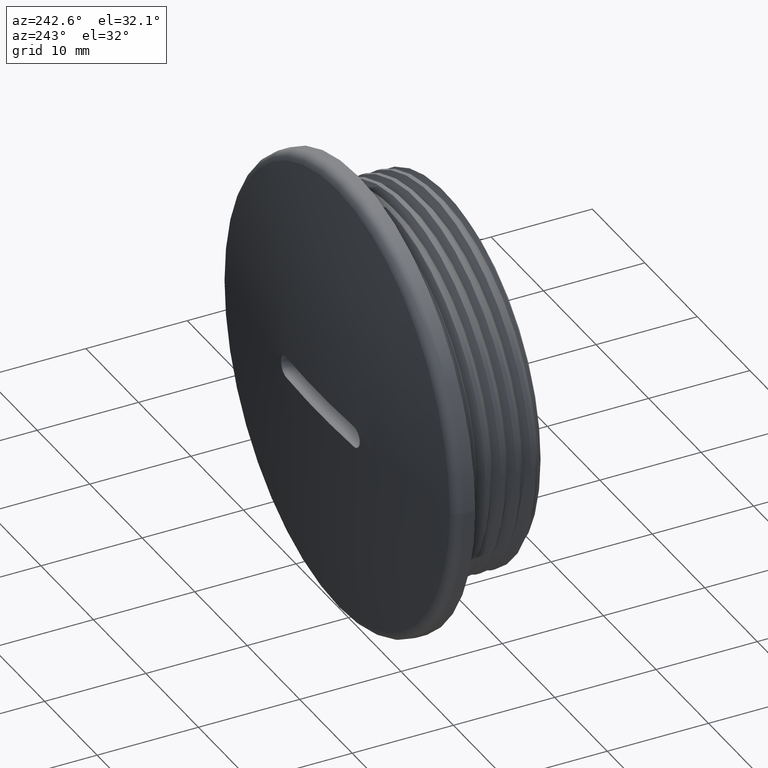
[diagram: clean part render]
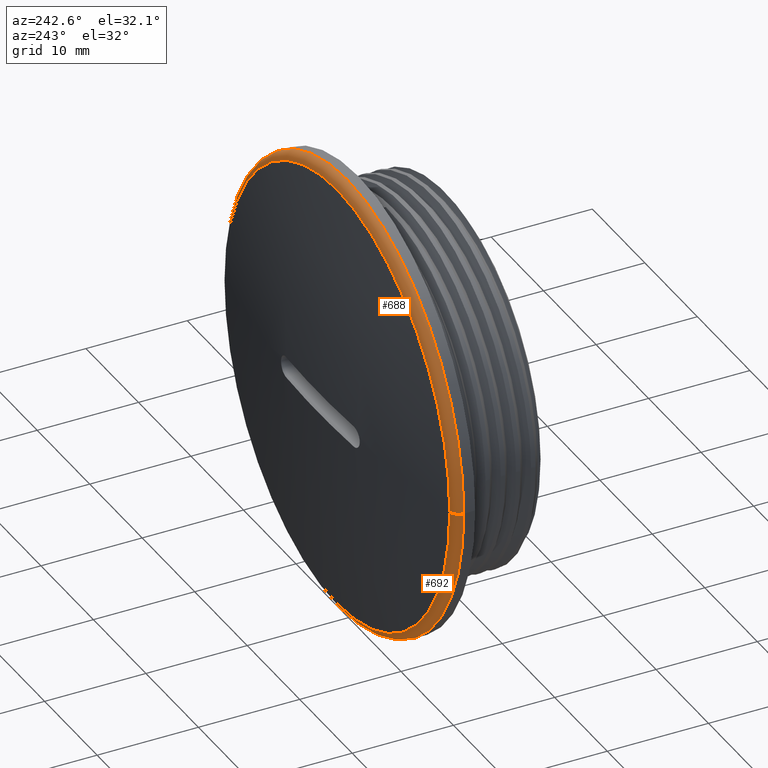
[diagram: same view with one multi-face feature highlighted, each face labeled with its STEP entity id]
A machine part, auxiliary view. The highlighted faces form ONE feature: a constant-radius fillet chain: 2 tangent blend faces with common blend radius 1 mm. The faces share edges in the B-rep.
Their STEP definitions:
[1] entity #688 (Torus):
#55 = ORIENTED_EDGE ( 'NONE', *, *, #587, .F. ) ;
#69 = ORIENTED_EDGE ( 'NONE', *, *, #652, .T. ) ;
#95 = ORIENTED_EDGE ( 'NONE', *, *, #583, .F. ) ;
#105 = ORIENTED_EDGE ( 'NONE', *, *, #582, .T. ) ;
#260 = VERTEX_POINT ( 'NONE', #359 ) ;
#266 = VERTEX_POINT ( 'NONE', #331 ) ;
#269 = EDGE_LOOP ( 'NONE', ( #95, #105, #69, #55 ) ) ;
#291 = VERTEX_POINT ( 'NONE', #320 ) ;
#320 = CARTESIAN_POINT ( 'NONE',  ( 21.40830658571909200, 11.10041557365281900, 1.359357947053561000E-015 ) ) ;
#331 = CARTESIAN_POINT ( 'NONE',  ( 22.20000000000046100, 10.12235199374323900, 1.290373062739448000E-029 ) ) ;
#359 = CARTESIAN_POINT ( 'NONE',  ( -21.40830658571803700, 11.10041557365485900, 4.029596600875390700E-015 ) ) ;
#374 = VERTEX_POINT ( 'NONE', #387 ) ;
#387 = CARTESIAN_POINT ( 'NONE',  ( -22.19999999999949800, 10.12235199374535500, 2.718715894107165300E-015 ) ) ;
#442 = DIRECTION ( 'NONE',  ( 1.224646799147353200E-016, -5.837380030986799400E-030, 1.000000000000000000 ) ) ;
#453 = DIRECTION ( 'NONE',  ( 1.000000000000000000, 0.0000000000000000000, -1.224646799147353500E-016 ) ) ;
#462 = CARTESIAN_POINT ( 'NONE',  ( 5.288733339959157600E-013, 11.10041557365383900, 1.359357947053561000E-015 ) ) ;
#463 = CARTESIAN_POINT ( 'NONE',  ( -21.20000000000000600, 10.12235199374531000, 3.955609161246009500E-015 ) ) ;
#464 = DIRECTION ( 'NONE',  ( 4.766582524080421000E-014, 1.000000000000000000, -0.0000000000000000000 ) ) ;
#466 = DIRECTION ( 'NONE',  ( 1.000000000000000000, -4.764587053115233100E-014, 0.0000000000000000000 ) ) ;
#490 = DIRECTION ( 'NONE',  ( 0.0000000000000000000, -0.0000000000000000000, -1.000000000000000000 ) ) ;
#495 = CARTESIAN_POINT ( 'NONE',  ( 21.20000000000097300, 10.12235199374328700, 1.359357947053561000E-015 ) ) ;
#539 = DIRECTION ( 'NONE',  ( -1.000000000000000000, 0.0000000000000000000, 0.0000000000000000000 ) ) ;
#582 = EDGE_CURVE ( 'NONE', #260, #374, #765, .T. ) ;
#583 = EDGE_CURVE ( 'NONE', #260, #291, #751, .T. ) ;
#587 = EDGE_CURVE ( 'NONE', #291, #266, #754, .T. ) ;
#652 = EDGE_CURVE ( 'NONE', #374, #266, #825, .T. ) ;
#688 = ADVANCED_FACE ( 'NONE', ( #1769 ), #843, .T. ) ;
#751 = CIRCLE ( 'NONE', #752, 21.40830658571856700 ) ;
#752 = AXIS2_PLACEMENT_3D ( 'NONE', #462, #464, #466 ) ;
#754 = CIRCLE ( 'NONE', #756, 0.9999999999994944000 ) ;
#756 = AXIS2_PLACEMENT_3D ( 'NONE', #495, #490, #539 ) ;
#765 = CIRCLE ( 'NONE', #767, 0.9999999999994944000 ) ;
#767 = AXIS2_PLACEMENT_3D ( 'NONE', #463, #442, #453 ) ;
#825 = CIRCLE ( 'NONE', #837, 22.19999999999998200 ) ;
#837 = AXIS2_PLACEMENT_3D ( 'NONE', #1069, #1070, #1071 ) ;
#843 = TOROIDAL_SURFACE ( 'NONE', #861, 21.20000000000049000, 0.9999999999994935200 ) ;
#861 = AXIS2_PLACEMENT_3D ( 'NONE', #1831, #1812, #1822 ) ;
#1069 = CARTESIAN_POINT ( 'NONE',  ( 4.822531263215523700E-013, 10.12235199374429800, 1.359357947053561000E-015 ) ) ;
#1070 = DIRECTION ( 'NONE',  ( 4.766582524080421000E-014, 1.000000000000000000, -0.0000000000000000000 ) ) ;
#1071 = DIRECTION ( 'NONE',  ( -1.000000000000000000, 4.766582524080419700E-014, 0.0000000000000000000 ) ) ;
#1769 = FACE_OUTER_BOUND ( 'NONE', #269, .T. ) ;
#1812 = DIRECTION ( 'NONE',  ( -4.766582524080421000E-014, -1.000000000000000000, 0.0000000000000000000 ) ) ;
#1822 = DIRECTION ( 'NONE',  ( 1.000000000000000000, -4.766582524080421000E-014, 0.0000000000000000000 ) ) ;
#1831 = CARTESIAN_POINT ( 'NONE',  ( 4.822531263215523700E-013, 10.12235199374429900, 1.359357947053561000E-015 ) ) ;
[2] entity #692 (Torus):
#186 = ORIENTED_EDGE ( 'NONE', *, *, #582, .F. ) ;
#203 = ORIENTED_EDGE ( 'NONE', *, *, #587, .T. ) ;
#207 = ORIENTED_EDGE ( 'NONE', *, *, #651, .T. ) ;
#232 = ORIENTED_EDGE ( 'NONE', *, *, #666, .F. ) ;
#260 = VERTEX_POINT ( 'NONE', #359 ) ;
#266 = VERTEX_POINT ( 'NONE', #331 ) ;
#268 = EDGE_LOOP ( 'NONE', ( #186, #232, #203, #207 ) ) ;
#291 = VERTEX_POINT ( 'NONE', #320 ) ;
#320 = CARTESIAN_POINT ( 'NONE',  ( 21.40830658571909200, 11.10041557365281900, 1.359357947053561000E-015 ) ) ;
#331 = CARTESIAN_POINT ( 'NONE',  ( 22.20000000000046100, 10.12235199374323900, 1.290373062739448000E-029 ) ) ;
#359 = CARTESIAN_POINT ( 'NONE',  ( -21.40830658571803700, 11.10041557365485900, 4.029596600875390700E-015 ) ) ;
#374 = VERTEX_POINT ( 'NONE', #387 ) ;
#387 = CARTESIAN_POINT ( 'NONE',  ( -22.19999999999949800, 10.12235199374535500, 2.718715894107165300E-015 ) ) ;
#442 = DIRECTION ( 'NONE',  ( 1.224646799147353200E-016, -5.837380030986799400E-030, 1.000000000000000000 ) ) ;
#453 = DIRECTION ( 'NONE',  ( 1.000000000000000000, 0.0000000000000000000, -1.224646799147353500E-016 ) ) ;
#463 = CARTESIAN_POINT ( 'NONE',  ( -21.20000000000000600, 10.12235199374531000, 3.955609161246009500E-015 ) ) ;
#490 = DIRECTION ( 'NONE',  ( 0.0000000000000000000, -0.0000000000000000000, -1.000000000000000000 ) ) ;
#495 = CARTESIAN_POINT ( 'NONE',  ( 21.20000000000097300, 10.12235199374328700, 1.359357947053561000E-015 ) ) ;
#539 = DIRECTION ( 'NONE',  ( -1.000000000000000000, 0.0000000000000000000, 0.0000000000000000000 ) ) ;
#582 = EDGE_CURVE ( 'NONE', #260, #374, #765, .T. ) ;
#587 = EDGE_CURVE ( 'NONE', #291, #266, #754, .T. ) ;
#651 = EDGE_CURVE ( 'NONE', #266, #374, #851, .T. ) ;
#666 = EDGE_CURVE ( 'NONE', #291, #260, #870, .T. ) ;
#692 = ADVANCED_FACE ( 'NONE', ( #1827 ), #821, .T. ) ;
#754 = CIRCLE ( 'NONE', #756, 0.9999999999994944000 ) ;
#756 = AXIS2_PLACEMENT_3D ( 'NONE', #495, #490, #539 ) ;
#765 = CIRCLE ( 'NONE', #767, 0.9999999999994944000 ) ;
#767 = AXIS2_PLACEMENT_3D ( 'NONE', #463, #442, #453 ) ;
#821 = TOROIDAL_SURFACE ( 'NONE', #849, 21.20000000000049000, 0.9999999999994935200 ) ;
#823 = AXIS2_PLACEMENT_3D ( 'NONE', #1060, #1064, #1061 ) ;
#849 = AXIS2_PLACEMENT_3D ( 'NONE', #1845, #1832, #1821 ) ;
#851 = CIRCLE ( 'NONE', #823, 22.19999999999998200 ) ;
#869 = AXIS2_PLACEMENT_3D ( 'NONE', #1157, #1184, #1162 ) ;
#870 = CIRCLE ( 'NONE', #869, 21.40830658571856700 ) ;
#1060 = CARTESIAN_POINT ( 'NONE',  ( 4.822531263215523700E-013, 10.12235199374429800, 1.359357947053561000E-015 ) ) ;
#1061 = DIRECTION ( 'NONE',  ( -1.000000000000000000, 4.766582524080419700E-014, 0.0000000000000000000 ) ) ;
#1064 = DIRECTION ( 'NONE',  ( 4.766582524080421000E-014, 1.000000000000000000, -0.0000000000000000000 ) ) ;
#1157 = CARTESIAN_POINT ( 'NONE',  ( 5.288733339959157600E-013, 11.10041557365383900, 1.359357947053561000E-015 ) ) ;
#1162 = DIRECTION ( 'NONE',  ( 1.000000000000000000, -4.764587053115233100E-014, 0.0000000000000000000 ) ) ;
#1184 = DIRECTION ( 'NONE',  ( 4.766582524080421000E-014, 1.000000000000000000, -0.0000000000000000000 ) ) ;
#1821 = DIRECTION ( 'NONE',  ( 1.000000000000000000, -4.766582524080421000E-014, 0.0000000000000000000 ) ) ;
#1827 = FACE_OUTER_BOUND ( 'NONE', #268, .T. ) ;
#1832 = DIRECTION ( 'NONE',  ( -4.766582524080421000E-014, -1.000000000000000000, 0.0000000000000000000 ) ) ;
#1845 = CARTESIAN_POINT ( 'NONE',  ( 4.822531263215523700E-013, 10.12235199374429900, 1.359357947053561000E-015 ) ) ;